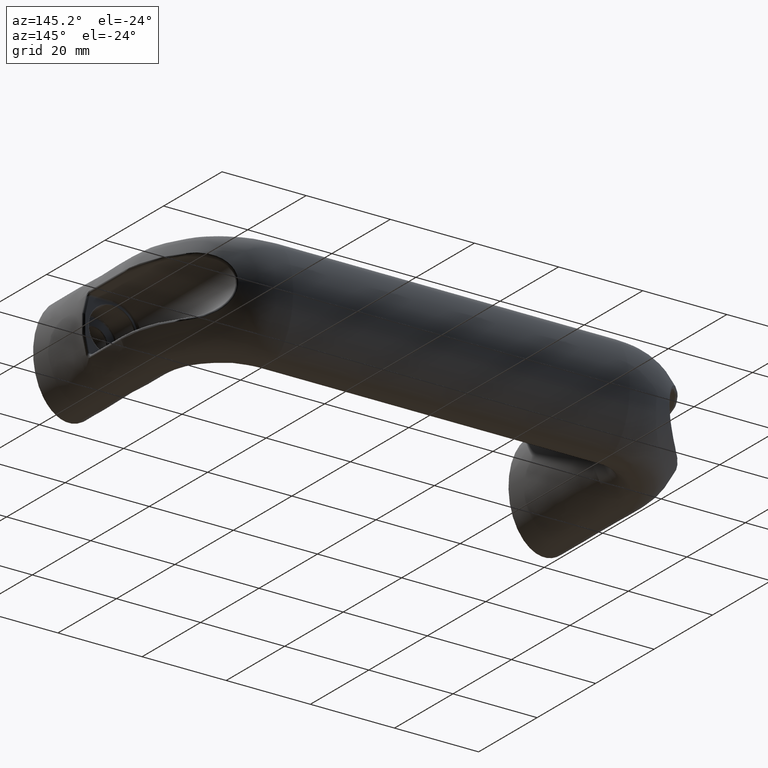
[diagram: clean part render]
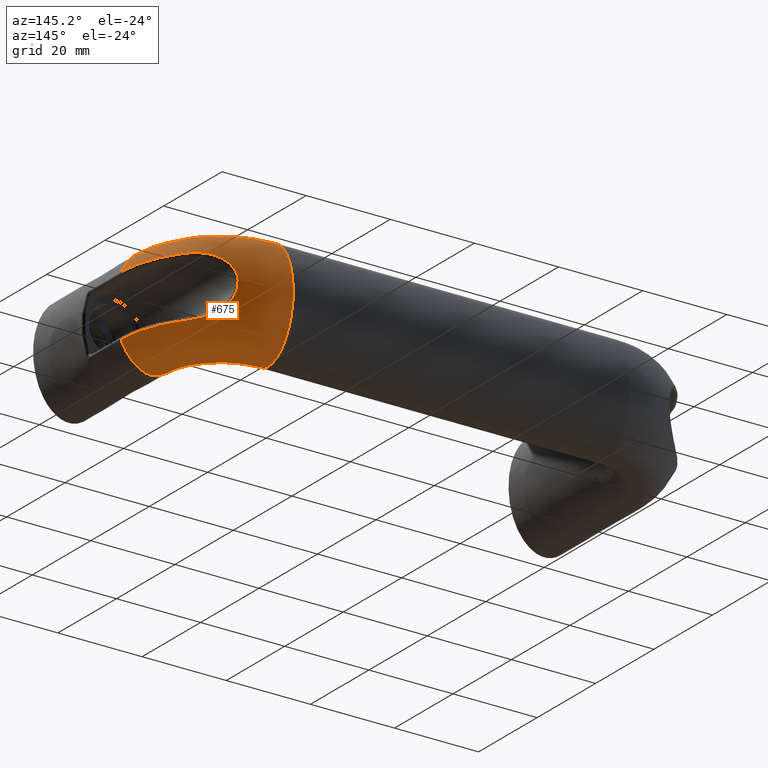
[diagram: same view with one face highlighted and labeled with its STEP entity id]
A machine part, auxiliary view. The second image highlights one B-rep face of the part: STEP entity #675.
In plain terms, the highlighted face is a freeform B-spline surface patch.
Its self-contained STEP definition (entity closure, byte-faithful):
#114=CIRCLE('',#733,16.5);
#168=FACE_OUTER_BOUND('',#218,.T.);
#218=EDGE_LOOP('',(#499,#500,#501,#502,#503,#504,#505,#506,#507));
#282=B_SPLINE_CURVE_WITH_KNOTS('',3,(#1139,#1140,#1141,#1142,#1143),
 .UNSPECIFIED.,.F.,.F.,(4,1,4),(-1.56834099361024,-0.896194853491563,0.),
 .UNSPECIFIED.);
#283=B_SPLINE_CURVE_WITH_KNOTS('',3,(#1145,#1146,#1147,#1148,#1149,#1150,
#1151,#1152,#1153,#1154,#1155,#1156),.UNSPECIFIED.,.F.,.F.,(4,1,1,1,1,1,
1,1,1,4),(-2.73713341995058,-2.34611435996046,-1.95509529997035,-1.56407623998023,
-1.36856670998517,-1.17305717999011,-0.977547649995051,-0.782038119999992,
-0.391019060009873,-1.97549707383848E-11),.UNSPECIFIED.);
#284=B_SPLINE_CURVE_WITH_KNOTS('',3,(#1157,#1158,#1159,#1160,#1161),
 .UNSPECIFIED.,.F.,.F.,(4,1,4),(-1.56834099359296,-0.67214614011127,0.),
 .UNSPECIFIED.);
#299=ELLIPSE('',#720,13.,8.5);
#302=ELLIPSE('',#725,13.,8.5);
#303=ELLIPSE('',#726,13.,8.5);
#305=ELLIPSE('',#728,13.,8.5);
#311=VERTEX_POINT('',#1015);
#315=VERTEX_POINT('',#1044);
#316=VERTEX_POINT('',#1046);
#317=VERTEX_POINT('',#1048);
#322=VERTEX_POINT('',#1068);
#331=VERTEX_POINT('',#1138);
#332=VERTEX_POINT('',#1144);
#373=EDGE_CURVE('',#311,#311,#299,.T.);
#379=EDGE_CURVE('',#315,#316,#302,.T.);
#380=EDGE_CURVE('',#316,#317,#303,.T.);
#386=EDGE_CURVE('',#322,#315,#305,.T.);
#397=EDGE_CURVE('',#331,#322,#282,.T.);
#398=EDGE_CURVE('',#332,#331,#283,.T.);
#399=EDGE_CURVE('',#317,#332,#284,.T.);
#400=EDGE_CURVE('',#311,#316,#114,.T.);
#499=ORIENTED_EDGE('',*,*,#397,.F.);
#500=ORIENTED_EDGE('',*,*,#398,.F.);
#501=ORIENTED_EDGE('',*,*,#399,.F.);
#502=ORIENTED_EDGE('',*,*,#380,.F.);
#503=ORIENTED_EDGE('',*,*,#400,.F.);
#504=ORIENTED_EDGE('',*,*,#373,.T.);
#505=ORIENTED_EDGE('',*,*,#400,.T.);
#506=ORIENTED_EDGE('',*,*,#379,.F.);
#507=ORIENTED_EDGE('',*,*,#386,.F.);
#666=(
BOUNDED_SURFACE()
B_SPLINE_SURFACE(2,2,((#1111,#1112,#1113),(#1114,#1115,#1116),(#1117,#1118,
#1119),(#1120,#1121,#1122),(#1123,#1124,#1125),(#1126,#1127,#1128),(#1129,
#1130,#1131),(#1132,#1133,#1134),(#1135,#1136,#1137)),.UNSPECIFIED.,.T.,
 .F.,.F.)
B_SPLINE_SURFACE_WITH_KNOTS((3,2,2,2,3),(3,3),(0.,1.5707963267949,3.14159265358979,
4.71238898038469,6.28318530717959),(0.,1.57083554406265),.UNSPECIFIED.)
GEOMETRIC_REPRESENTATION_ITEM()
RATIONAL_B_SPLINE_SURFACE(((1.,0.707099468671495,1.00001462539524),(0.707106781186551,
0.499994829271021,0.707117122902704),(1.,0.707099468671495,1.00001462539524),
(0.70710678118655,0.499994829271021,0.707117122902703),(1.,0.707099468671495,
1.00001462539524),(0.707106781186548,0.499994829271019,0.707117122902701),
(1.,0.707099468671495,1.00001462539524),(0.707106781186548,0.499994829271019,
0.707117122902701),(1.,0.707099468671495,1.00001462539524)))
REPRESENTATION_ITEM('')
SURFACE()
);
#675=ADVANCED_FACE('',(#168),#666,.T.);
#720=AXIS2_PLACEMENT_3D('',#1016,#806,#807);
#725=AXIS2_PLACEMENT_3D('',#1047,#817,#818);
#726=AXIS2_PLACEMENT_3D('',#1049,#819,#820);
#728=AXIS2_PLACEMENT_3D('',#1070,#825,#826);
#733=AXIS2_PLACEMENT_3D('',#1162,#841,#842);
#806=DIRECTION('center_axis',(1.,2.83276944882399E-16,0.));
#807=DIRECTION('ref_axis',(0.,0.,-1.));
#817=DIRECTION('center_axis',(5.66553889764798E-16,-1.,0.));
#818=DIRECTION('ref_axis',(0.,0.,-1.));
#819=DIRECTION('center_axis',(5.66553889764798E-16,-1.,0.));
#820=DIRECTION('ref_axis',(0.,0.,-1.));
#825=DIRECTION('center_axis',(5.66553889764798E-16,-1.,0.));
#826=DIRECTION('ref_axis',(0.,0.,-1.));
#841=DIRECTION('center_axis',(0.,0.,-1.));
#842=DIRECTION('ref_axis',(1.07657990266682E-15,1.,0.));
#1015=CARTESIAN_POINT('',(96.5,44.5000000000001,-13.));
#1016=CARTESIAN_POINT('Origin',(96.5,44.5000000000001,0.));
#1044=CARTESIAN_POINT('',(113.,28.,13.));
#1046=CARTESIAN_POINT('',(113.,28.,-13.));
#1047=CARTESIAN_POINT('Origin',(113.,28.,0.));
#1048=CARTESIAN_POINT('',(120.077522929227,28.,-7.19939933334355));
#1049=CARTESIAN_POINT('Origin',(113.,28.,0.));
#1068=CARTESIAN_POINT('',(120.07752292926,28.,7.19939933326746));
#1070=CARTESIAN_POINT('Origin',(113.,28.,0.));
#1111=CARTESIAN_POINT('Ctrl Pts',(96.5,44.5000000000001,-13.));
#1112=CARTESIAN_POINT('Ctrl Pts',(113.000582587134,44.5,-13.));
#1113=CARTESIAN_POINT('Ctrl Pts',(112.999999989715,27.9994174231508,-13.));
#1114=CARTESIAN_POINT('Ctrl Pts',(96.5,53.0000000000001,-13.));
#1115=CARTESIAN_POINT('Ctrl Pts',(121.500882707779,53.,-13.));
#1116=CARTESIAN_POINT('Ctrl Pts',(121.499999984417,27.9991173078042,-13.));
#1117=CARTESIAN_POINT('Ctrl Pts',(96.5,53.0000000000001,-7.9602041944578E-16));
#1118=CARTESIAN_POINT('Ctrl Pts',(121.500882707779,53.,-7.9602041944578E-16));
#1119=CARTESIAN_POINT('Ctrl Pts',(121.499999984417,27.9991173078042,-7.9602041944578E-16));
#1120=CARTESIAN_POINT('Ctrl Pts',(96.5,53.0000000000001,13.));
#1121=CARTESIAN_POINT('Ctrl Pts',(121.500882707779,53.,13.));
#1122=CARTESIAN_POINT('Ctrl Pts',(121.499999984417,27.9991173078042,13.));
#1123=CARTESIAN_POINT('Ctrl Pts',(96.5,44.5000000000001,13.));
#1124=CARTESIAN_POINT('Ctrl Pts',(113.000582587134,44.5,13.));
#1125=CARTESIAN_POINT('Ctrl Pts',(112.999999989715,27.9994174231508,13.));
#1126=CARTESIAN_POINT('Ctrl Pts',(96.5,36.0000000000001,13.));
#1127=CARTESIAN_POINT('Ctrl Pts',(104.500282466489,36.,13.));
#1128=CARTESIAN_POINT('Ctrl Pts',(104.499999995014,27.9997175384974,13.));
#1129=CARTESIAN_POINT('Ctrl Pts',(96.5,36.0000000000001,2.38806125833734E-15));
#1130=CARTESIAN_POINT('Ctrl Pts',(104.500282466489,36.,2.38806125833734E-15));
#1131=CARTESIAN_POINT('Ctrl Pts',(104.499999995014,27.9997175384974,2.38806125833734E-15));
#1132=CARTESIAN_POINT('Ctrl Pts',(96.5,36.0000000000001,-13.));
#1133=CARTESIAN_POINT('Ctrl Pts',(104.500282466489,36.,-13.));
#1134=CARTESIAN_POINT('Ctrl Pts',(104.499999995014,27.9997175384974,-13.));
#1135=CARTESIAN_POINT('Ctrl Pts',(96.5,44.5000000000001,-13.));
#1136=CARTESIAN_POINT('Ctrl Pts',(113.000582587134,44.5,-13.));
#1137=CARTESIAN_POINT('Ctrl Pts',(112.999999989715,27.9994174231508,-13.));
#1138=CARTESIAN_POINT('',(114.856994041942,42.7959574621704,7.19939933334357));
#1139=CARTESIAN_POINT('Ctrl Pts',(114.856994041942,42.7959574621704,7.19939933334357));
#1140=CARTESIAN_POINT('Ctrl Pts',(116.290885951395,41.0169617259418,7.19939933334357));
#1141=CARTESIAN_POINT('Ctrl Pts',(119.030227569491,36.3762613439291,7.19939933334357));
#1142=CARTESIAN_POINT('Ctrl Pts',(120.077522929227,31.046563627,7.19939933334357));
#1143=CARTESIAN_POINT('Ctrl Pts',(120.077522929227,28.,7.19939933334357));
#1144=CARTESIAN_POINT('',(114.856994041942,42.7959574621704,-7.19939933334355));
#1145=CARTESIAN_POINT('Ctrl Pts',(114.856994041942,42.7959574621704,-7.19939933334356));
#1146=CARTESIAN_POINT('Ctrl Pts',(114.022831598537,43.8308830519829,-7.19939933336521));
#1147=CARTESIAN_POINT('Ctrl Pts',(112.278706664982,45.8443802533329,-6.89940196360384));
#1148=CARTESIAN_POINT('Ctrl Pts',(109.684016883695,48.5233191823035,-5.31352015058589));
#1149=CARTESIAN_POINT('Ctrl Pts',(108.011195497739,50.0797194080529,-2.6789625116858));
#1150=CARTESIAN_POINT('Ctrl Pts',(107.628376592828,50.4252182167112,0.00391272461049104));
#1151=CARTESIAN_POINT('Ctrl Pts',(107.91600690009,50.1656327003719,2.00361457683149));
#1152=CARTESIAN_POINT('Ctrl Pts',(108.681789741819,49.4564530721694,3.74605388987673));
#1153=CARTESIAN_POINT('Ctrl Pts',(110.112638336111,48.0792536794526,5.5672001893837));
#1154=CARTESIAN_POINT('Ctrl Pts',(112.282987822766,45.8413315428168,6.9067016798664));
#1155=CARTESIAN_POINT('Ctrl Pts',(114.02283159852,43.830883052002,7.19939933336335));
#1156=CARTESIAN_POINT('Ctrl Pts',(114.856994041926,42.79595746219,7.19939933334358));
#1157=CARTESIAN_POINT('Ctrl Pts',(120.077522929227,28.,-7.19939933334355));
#1158=CARTESIAN_POINT('Ctrl Pts',(120.077522929227,31.0465636269664,-7.19939933334355));
#1159=CARTESIAN_POINT('Ctrl Pts',(119.030227569514,36.3762613438369,-7.19939933334355));
#1160=CARTESIAN_POINT('Ctrl Pts',(116.290885951476,41.0169617258136,-7.19939933334355));
#1161=CARTESIAN_POINT('Ctrl Pts',(114.856994042052,42.7959574620332,-7.19939933334355));
#1162=CARTESIAN_POINT('Origin',(96.5,28.,-13.));